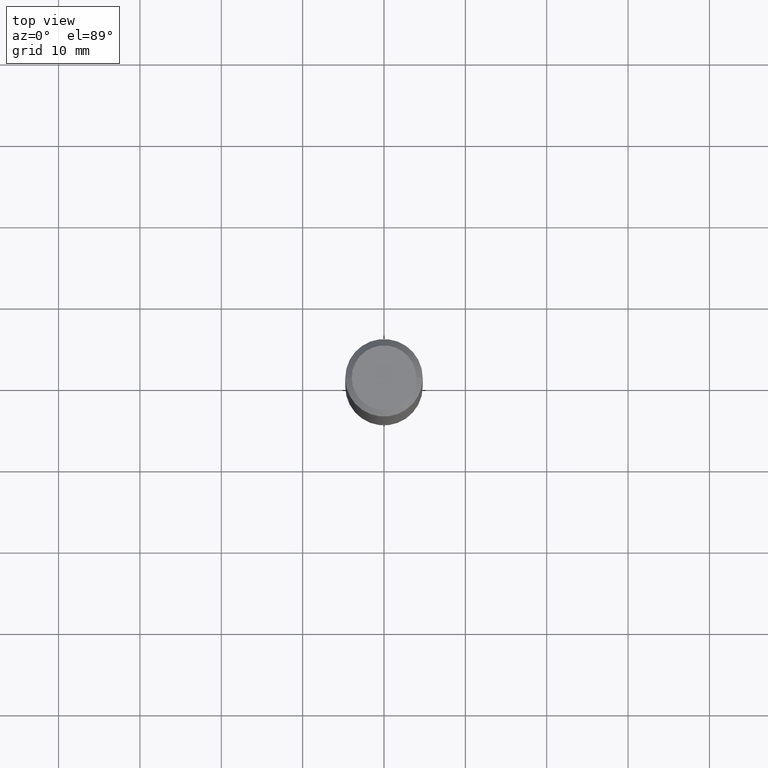
[diagram: clean part render]
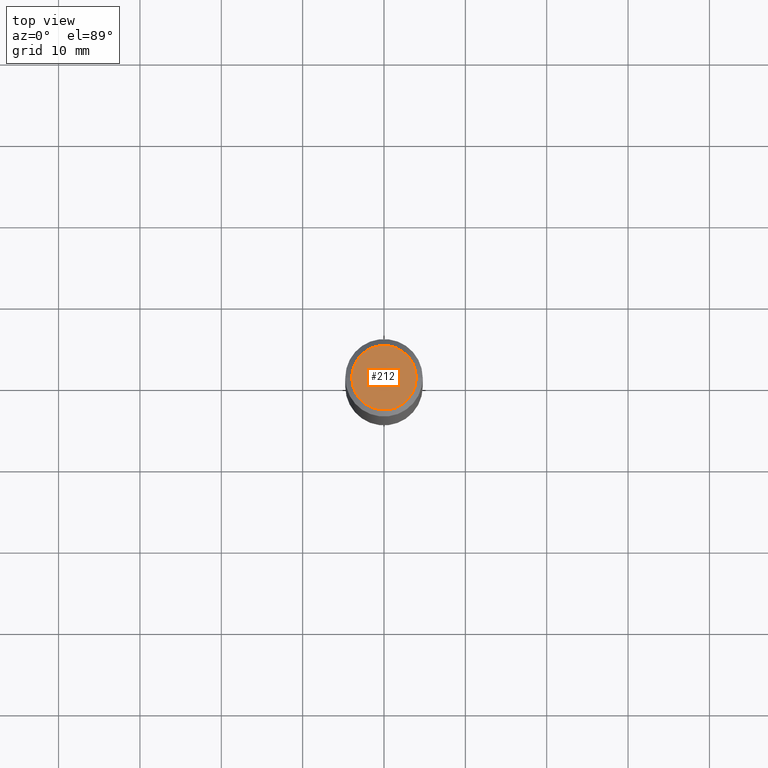
[diagram: same view with one face highlighted and labeled with its STEP entity id]
A machine part, top view. The second image highlights one B-rep face of the part: STEP entity #212.
In plain terms, the highlighted planar face has unit normal (0, -0, -1).
Its self-contained STEP definition (entity closure, byte-faithful):
#4 = DIRECTION ( 'NONE',  ( 2.438088387897960049E-29, -3.491481338843145188E-15, -1.000000000000000000 ) ) ;
#6 = AXIS2_PLACEMENT_3D ( 'NONE', #19, #198, #447 ) ;
#19 = CARTESIAN_POINT ( 'NONE',  ( 1.481771224913538024E-44, -2.115576599110663894E-30, -6.059252202137306602E-16 ) ) ;
#21 = CARTESIAN_POINT ( 'NONE',  ( 0.1562500000000004163, -1.233702489286408510E-15, -6.059252202137225744E-16 ) ) ;
#26 = AXIS2_PLACEMENT_3D ( 'NONE', #352, #4, #341 ) ;
#54 = CIRCLE ( 'NONE', #6, 0.1562500000000004163 ) ;
#56 = CARTESIAN_POINT ( 'NONE',  ( 1.481771224913538024E-44, -2.115576599110663894E-30, -6.059252202137306602E-16 ) ) ;
#73 = EDGE_CURVE ( 'NONE', #294, #111, #431, .T. ) ;
#86 = AXIS2_PLACEMENT_3D ( 'NONE', #56, #376, #297 ) ;
#111 = VERTEX_POINT ( 'NONE', #21 ) ;
#126 = EDGE_CURVE ( 'NONE', #111, #294, #54, .T. ) ;
#130 = ORIENTED_EDGE ( 'NONE', *, *, #126, .T. ) ;
#173 = CARTESIAN_POINT ( 'NONE',  ( -0.1562500000000004163, 1.145642314307903329E-15, -6.059252202137384502E-16 ) ) ;
#184 = ORIENTED_EDGE ( 'NONE', *, *, #73, .T. ) ;
#198 = DIRECTION ( 'NONE',  ( -2.445468806185136597E-29, 3.491481338843145583E-15, 1.000000000000000000 ) ) ;
#212 = ADVANCED_FACE ( 'NONE', ( #441 ), #440, .F. ) ;
#216 = EDGE_LOOP ( 'NONE', ( #184, #130 ) ) ;
#294 = VERTEX_POINT ( 'NONE', #173 ) ;
#297 = DIRECTION ( 'NONE',  ( 1.000000000000000000, -6.982962677686266711E-15, 4.891558762689331823E-29 ) ) ;
#341 = DIRECTION ( 'NONE',  ( -1.000000000000000000, 6.982962677686265922E-15, -4.876176775795935793E-29 ) ) ;
#352 = CARTESIAN_POINT ( 'NONE',  ( 7.408856124567691367E-45, -1.057788299555332297E-30, -3.029626101068653794E-16 ) ) ;
#376 = DIRECTION ( 'NONE',  ( -2.445468806185136597E-29, 3.491481338843145583E-15, 1.000000000000000000 ) ) ;
#431 = CIRCLE ( 'NONE', #86, 0.1562500000000004163 ) ;
#440 = PLANE ( 'NONE',  #26 ) ;
#441 = FACE_OUTER_BOUND ( 'NONE', #216, .T. ) ;
#447 = DIRECTION ( 'NONE',  ( 1.000000000000000000, -6.982962677686266711E-15, 4.891558762689331823E-29 ) ) ;